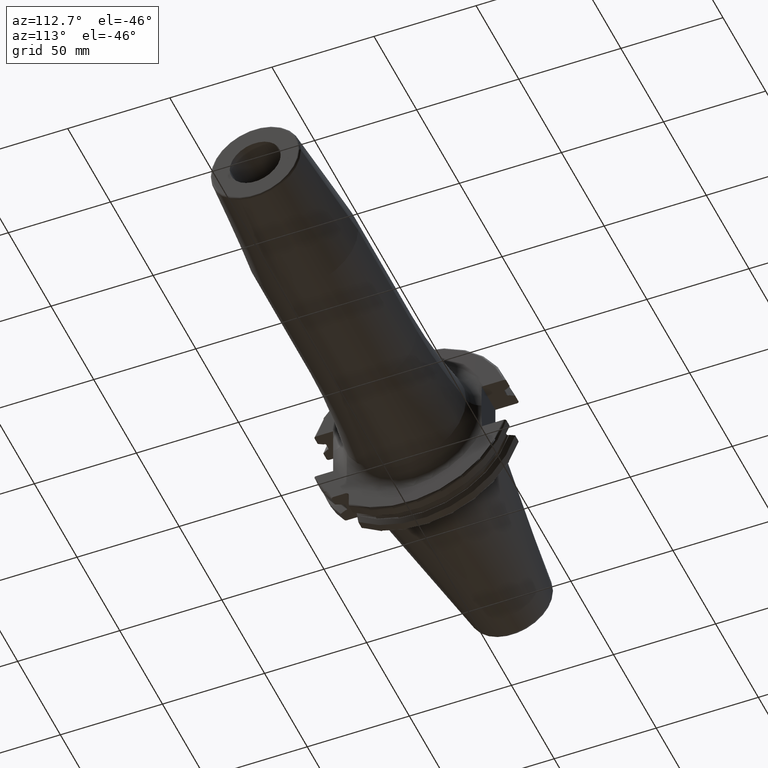
[diagram: clean part render]
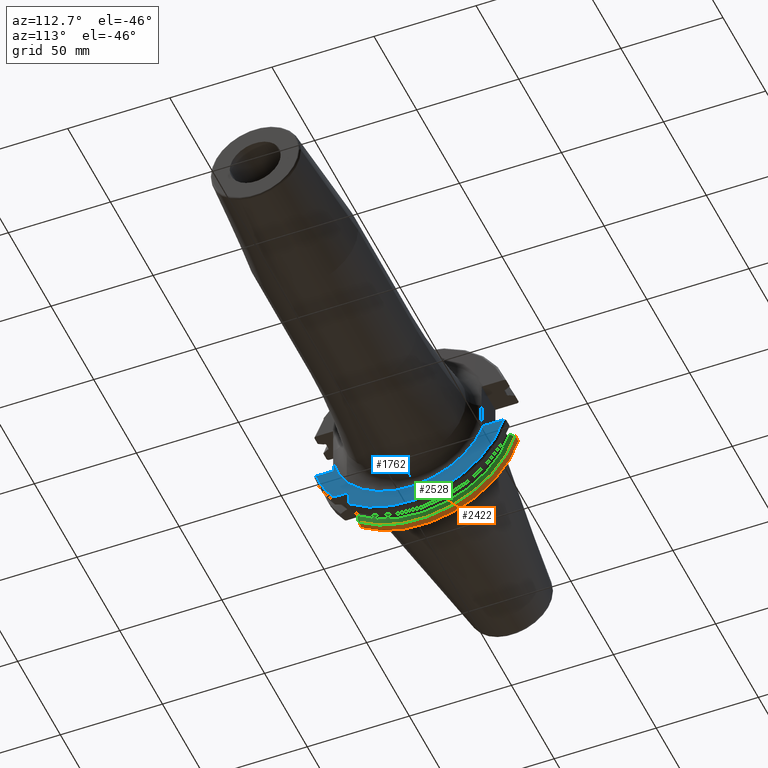
[diagram: same view with three faces highlighted in distinct colors, each labeled with its STEP entity id]
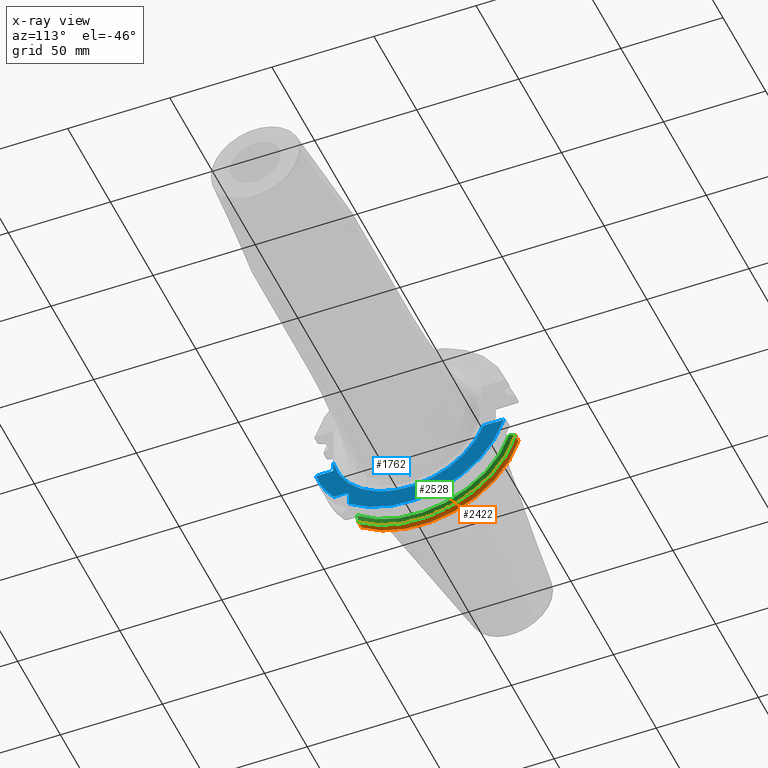
[diagram: x-ray of the same camera — body ghosted, the three highlighted faces saturated]
A machine part, auxiliary view with three faces highlighted in distinct colors.
The next image is the same camera in x-ray (body ghosted, the three faces saturated) — at least one of them is partly hidden behind the body in this view.
Their STEP definitions:

[orange] entity #2422 — the highlighted cylindrical surface (partial cylindrical patch) has radius 48.7375 mm, axis along (1, 0, 0).
#733=DIRECTION('',(1.E0,0.E0,0.E0));
#734=VECTOR('',#733,3.734621614173E0);
#735=CARTESIAN_POINT('',(4.2E0,4.699929686974E1,-1.29E1));
#736=LINE('',#735,#734);
#737=DIRECTION('',(1.E0,0.E0,0.E0));
#738=VECTOR('',#737,3.734621614173E0);
#739=CARTESIAN_POINT('',(4.2E0,-2.985E1,-3.852689198793E1));
#740=LINE('',#739,#738);
#741=CARTESIAN_POINT('',(7.934621614173E0,0.E0,0.E0));
#742=DIRECTION('',(1.E0,0.E0,0.E0));
#743=DIRECTION('',(0.E0,-6.124647345473E-1,-7.904979120376E-1));
#744=AXIS2_PLACEMENT_3D('',#741,#742,#743);
#816=CARTESIAN_POINT('',(4.2E0,0.E0,0.E0));
#817=DIRECTION('',(-1.E0,0.E0,0.E0));
#818=DIRECTION('',(0.E0,9.643354064066E-1,-2.646832521159E-1));
#819=AXIS2_PLACEMENT_3D('',#816,#817,#818);
#853=CARTESIAN_POINT('',(7.934621614173E0,4.699929686974E1,-1.29E1));
#860=CARTESIAN_POINT('',(7.934621614173E0,-2.985E1,-3.852689198793E1));
#1390=VERTEX_POINT('',#853);
#1428=CARTESIAN_POINT('',(4.2E0,4.699929686974E1,-1.29E1));
#1429=VERTEX_POINT('',#1428);
#1459=CARTESIAN_POINT('',(4.2E0,-2.985E1,-3.852689198793E1));
#1460=VERTEX_POINT('',#1459);
#1483=VERTEX_POINT('',#860);
#2409=CARTESIAN_POINT('',(-1.076325E2,0.E0,0.E0));
#2410=DIRECTION('',(1.E0,0.E0,0.E0));
#2411=DIRECTION('',(0.E0,-1.E0,0.E0));
#2412=AXIS2_PLACEMENT_3D('',#2409,#2410,#2411);
#2413=CYLINDRICAL_SURFACE('',#2412,4.87375E1);
#2414=ORIENTED_EDGE('',*,*,#1715,.F.);
#2416=ORIENTED_EDGE('',*,*,#2415,.T.);
#2417=ORIENTED_EDGE('',*,*,#2374,.T.);
#2419=ORIENTED_EDGE('',*,*,#2418,.T.);
#2420=EDGE_LOOP('',(#2414,#2416,#2417,#2419));
#2421=FACE_OUTER_BOUND('',#2420,.F.);
#2422=ADVANCED_FACE('',(#2421),#2413,.T.);
#745=CIRCLE('',#744,4.87375E1);
#820=CIRCLE('',#819,4.87375E1);
#1715=EDGE_CURVE('',#1429,#1390,#736,.T.);
#2374=EDGE_CURVE('',#1460,#1483,#740,.T.);
#2415=EDGE_CURVE('',#1429,#1460,#820,.T.);
#2418=EDGE_CURVE('',#1483,#1390,#745,.T.);

[blue] entity #1762 — the highlighted planar face has unit normal (1, 0, 0).
#130=CARTESIAN_POINT('',(1.905E1,0.E0,0.E0));
#131=DIRECTION('',(1.E0,0.E0,0.E0));
#132=DIRECTION('',(0.E0,-9.789257517418E-1,-2.042164845861E-1));
#133=AXIS2_PLACEMENT_3D('',#130,#131,#132);
#135=DIRECTION('',(0.E0,-1.E0,-3.034703551612E-7));
#136=VECTOR('',#135,9.891505879772E0);
#137=CARTESIAN_POINT('',(1.905E1,4.596149373389E1,-1.29E1));
#138=LINE('',#137,#136);
#139=DIRECTION('',(0.E0,0.E0,1.E0));
#140=VECTOR('',#139,5.653810627237E0);
#141=CARTESIAN_POINT('',(1.905E1,-2.985E1,-3.725381062724E1));
#142=LINE('',#141,#140);
#143=DIRECTION('',(0.E0,-1.E0,0.E0));
#144=VECTOR('',#143,5.653810627237E0);
#145=CARTESIAN_POINT('',(1.905E1,-3.16E1,-2.985E1));
#146=LINE('',#145,#144);
#147=DIRECTION('',(0.E0,1.E0,0.E0));
#148=VECTOR('',#147,8.461493733886E0);
#149=CARTESIAN_POINT('',(1.905E1,-4.596149373389E1,-1.29E1));
#150=LINE('',#149,#148);
#151=DIRECTION('',(0.E0,6.584958678012E-6,9.999999999783E-1));
#152=VECTOR('',#151,5.076666840961E0);
#153=CARTESIAN_POINT('',(1.905E1,-3.75E1,-1.29E1));
#154=LINE('',#153,#152);
#666=CARTESIAN_POINT('',(1.905E1,-3.16E1,-3.16E1));
#667=DIRECTION('',(-1.E0,0.E0,0.E0));
#668=DIRECTION('',(0.E0,0.E0,1.E0));
#669=AXIS2_PLACEMENT_3D('',#666,#667,#668);
#689=CARTESIAN_POINT('',(1.905E1,4.596149373389E1,-1.29E1));
#701=CARTESIAN_POINT('',(1.905E1,0.E0,0.E0));
#702=DIRECTION('',(-1.E0,0.E0,0.E0));
#703=DIRECTION('',(0.E0,9.627964123359E-1,-2.702278083268E-1));
#704=AXIS2_PLACEMENT_3D('',#701,#702,#703);
#717=CARTESIAN_POINT('',(1.905E1,0.E0,0.E0));
#718=DIRECTION('',(-1.E0,0.E0,0.E0));
#719=DIRECTION('',(0.E0,-7.803888060170E-1,-6.252945797329E-1));
#720=AXIS2_PLACEMENT_3D('',#717,#718,#719);
#731=CARTESIAN_POINT('',(1.905E1,-3.725381062724E1,-2.985E1));
#1392=CARTESIAN_POINT('',(1.905E1,-4.596149373389E1,-1.29E1));
#1393=CARTESIAN_POINT('',(1.905E1,-3.75E1,-1.29E1));
#1394=VERTEX_POINT('',#1392);
#1395=VERTEX_POINT('',#1393);
#1438=VERTEX_POINT('',#689);
#1455=CARTESIAN_POINT('',(1.905E1,-2.985E1,-3.725381062724E1));
#1456=VERTEX_POINT('',#1455);
#1463=CARTESIAN_POINT('',(1.905E1,-3.16E1,-2.985E1));
#1464=CARTESIAN_POINT('',(1.905E1,-2.985E1,-3.16E1));
#1465=VERTEX_POINT('',#1463);
#1466=VERTEX_POINT('',#1464);
#1488=VERTEX_POINT('',#731);
#1517=CARTESIAN_POINT('',(1.905E1,-3.750005736416E1,-7.822993595848E0));
#1518=CARTESIAN_POINT('',(1.905E1,3.606998371324E1,-1.289999248226E1));
#1519=VERTEX_POINT('',#1517);
#1520=VERTEX_POINT('',#1518);
#1738=CARTESIAN_POINT('',(1.905E1,0.E0,0.E0));
#1739=DIRECTION('',(1.E0,0.E0,0.E0));
#1740=DIRECTION('',(0.E0,-1.E0,0.E0));
#1741=AXIS2_PLACEMENT_3D('',#1738,#1739,#1740);
#1742=PLANE('',#1741);
#1744=ORIENTED_EDGE('',*,*,#1743,.T.);
#1745=ORIENTED_EDGE('',*,*,#1706,.F.);
#1747=ORIENTED_EDGE('',*,*,#1746,.T.);
#1749=ORIENTED_EDGE('',*,*,#1748,.T.);
#1751=ORIENTED_EDGE('',*,*,#1750,.F.);
#1753=ORIENTED_EDGE('',*,*,#1752,.T.);
#1755=ORIENTED_EDGE('',*,*,#1754,.T.);
#1757=ORIENTED_EDGE('',*,*,#1756,.T.);
#1759=ORIENTED_EDGE('',*,*,#1758,.T.);
#1760=EDGE_LOOP('',(#1744,#1745,#1747,#1749,#1751,#1753,#1755,#1757,#1759));
#1761=FACE_OUTER_BOUND('',#1760,.F.);
#1762=ADVANCED_FACE('',(#1761),#1742,.T.);
#134=CIRCLE('',#133,3.830735609666E1);
#670=CIRCLE('',#669,1.75E0);
#705=CIRCLE('',#704,4.77375E1);
#721=CIRCLE('',#720,4.77375E1);
#1706=EDGE_CURVE('',#1438,#1520,#138,.T.);
#1743=EDGE_CURVE('',#1519,#1520,#134,.T.);
#1746=EDGE_CURVE('',#1438,#1456,#705,.T.);
#1748=EDGE_CURVE('',#1456,#1466,#142,.T.);
#1750=EDGE_CURVE('',#1465,#1466,#670,.T.);
#1752=EDGE_CURVE('',#1465,#1488,#146,.T.);
#1754=EDGE_CURVE('',#1488,#1394,#721,.T.);
#1756=EDGE_CURVE('',#1394,#1395,#150,.T.);
#1758=EDGE_CURVE('',#1395,#1519,#154,.T.);

[green] entity #2528 — the highlighted conical surface has half-angle 60 deg.
#392=CARTESIAN_POINT('',(9.2625E0,0.E0,0.E0));
#393=DIRECTION('',(-1.E0,0.E0,0.E0));
#394=DIRECTION('',(0.E0,9.606411165078E-1,-2.777924499957E-1));
#395=AXIS2_PLACEMENT_3D('',#392,#393,#394);
#741=CARTESIAN_POINT('',(7.934621614173E0,0.E0,0.E0));
#742=DIRECTION('',(1.E0,0.E0,0.E0));
#743=DIRECTION('',(0.E0,-6.124647345473E-1,-7.904979120376E-1));
#744=AXIS2_PLACEMENT_3D('',#741,#742,#743);
#848=CARTESIAN_POINT('',(9.2625E0,4.460981716077E1,-1.29E1));
#849=CARTESIAN_POINT('',(9.118283773553E0,4.486984125009E1,-1.29E1));
#850=CARTESIAN_POINT('',(8.827633549554E0,4.539353719098E1,-1.29E1));
#851=CARTESIAN_POINT('',(8.385043355543E0,4.618996220278E1,-1.29E1));
#852=CARTESIAN_POINT('',(8.085504386120E0,4.672829507383E1,-1.29E1));
#853=CARTESIAN_POINT('',(7.934621614173E0,4.699929686974E1,-1.29E1));
#855=CARTESIAN_POINT('',(9.2625E0,-2.985E1,-3.557278857662E1));
#856=CARTESIAN_POINT('',(9.122796459387E0,-2.985E1,-3.588866659244E1));
#857=CARTESIAN_POINT('',(8.838204990616E0,-2.985E1,-3.652866450573E1));
#858=CARTESIAN_POINT('',(8.396067032347E0,-2.985E1,-3.751242476101E1));
#859=CARTESIAN_POINT('',(8.090246731407E0,-2.985E1,-3.818590359837E1));
#860=CARTESIAN_POINT('',(7.934621614173E0,-2.985E1,-3.852689198793E1));
#1346=CARTESIAN_POINT('',(9.2625E0,4.460981716077E1,-1.29E1));
#1348=VERTEX_POINT('',#1346);
#1390=VERTEX_POINT('',#853);
#1439=CARTESIAN_POINT('',(9.2625E0,-2.985E1,-3.557278857662E1));
#1440=VERTEX_POINT('',#1439);
#1483=VERTEX_POINT('',#860);
#2517=CARTESIAN_POINT('',(8.598560807087E0,0.E0,0.E0));
#2518=DIRECTION('',(-1.E0,0.E0,0.E0));
#2519=DIRECTION('',(0.E0,1.E0,0.E0));
#2520=AXIS2_PLACEMENT_3D('',#2517,#2518,#2519);
#2521=CONICAL_SURFACE('',#2520,4.758752358474E1,6.E1);
#2522=ORIENTED_EDGE('',*,*,#1717,.T.);
#2523=ORIENTED_EDGE('',*,*,#2418,.F.);
#2524=ORIENTED_EDGE('',*,*,#2372,.F.);
#2525=ORIENTED_EDGE('',*,*,#2104,.F.);
#2526=EDGE_LOOP('',(#2522,#2523,#2524,#2525));
#2527=FACE_OUTER_BOUND('',#2526,.F.);
#2528=ADVANCED_FACE('',(#2527),#2521,.T.);
#396=CIRCLE('',#395,4.643754716948E1);
#745=CIRCLE('',#744,4.87375E1);
#854=B_SPLINE_CURVE_WITH_KNOTS('',3,(#848,#849,#850,#851,#852,#853),
.UNSPECIFIED.,.F.,.F.,(4,1,1,4),(0.E0,3.333333333333E-1,6.666666666667E-1,1.E0),
.UNSPECIFIED.);
#861=B_SPLINE_CURVE_WITH_KNOTS('',3,(#855,#856,#857,#858,#859,#860),
.UNSPECIFIED.,.F.,.F.,(4,1,1,4),(0.E0,3.333333333333E-1,6.666666666667E-1,1.E0),
.UNSPECIFIED.);
#1717=EDGE_CURVE('',#1348,#1390,#854,.T.);
#2104=EDGE_CURVE('',#1348,#1440,#396,.T.);
#2372=EDGE_CURVE('',#1440,#1483,#861,.T.);
#2418=EDGE_CURVE('',#1483,#1390,#745,.T.);